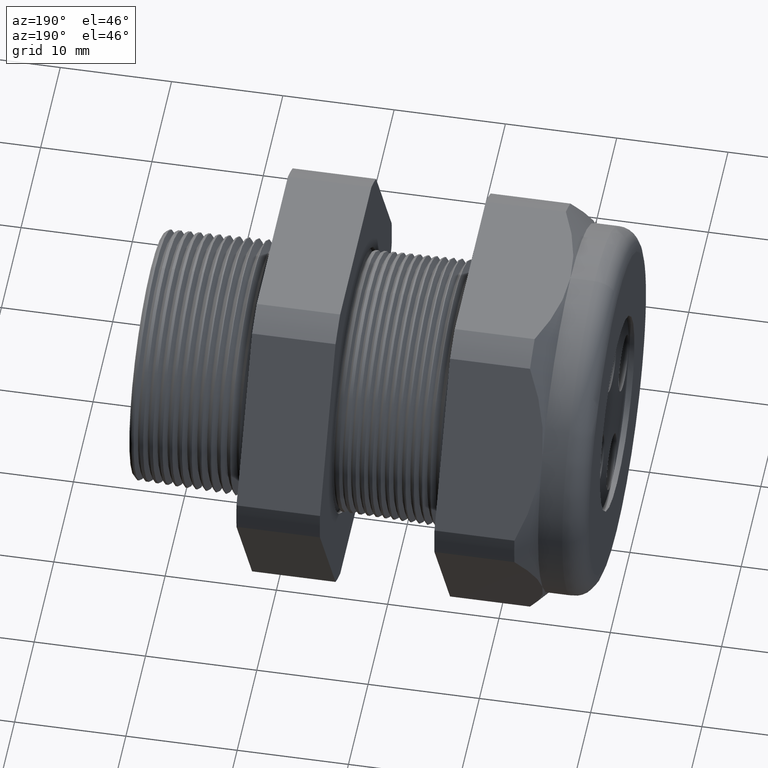
[diagram: clean part render]
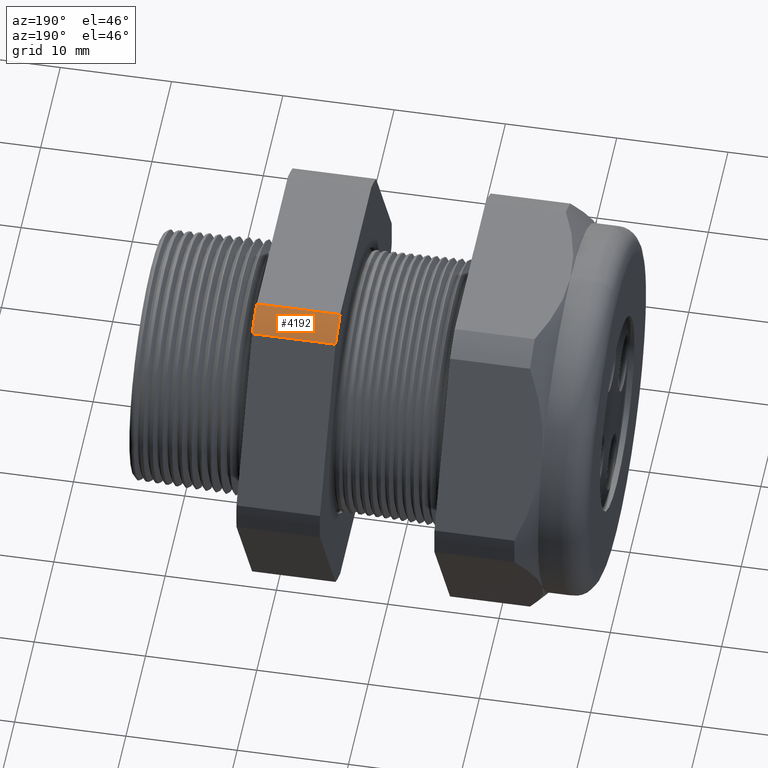
[diagram: same view with one face highlighted and labeled with its STEP entity id]
A machine part, auxiliary view. The second image highlights one B-rep face of the part: STEP entity #4192.
In plain terms, the highlighted cylindrical surface (partial cylindrical patch) has radius 18.3261 mm, axis along (-1, 0, 0).
Its self-contained STEP definition (entity closure, byte-faithful):
#3318 = CARTESIAN_POINT ( 'NONE',  ( -0.6052755905511810800, 0.4063420493440890700, 0.5961949252843787800 ) ) ;
#3519 = CYLINDRICAL_SURFACE ( 'NONE', #3521, 0.7215000000000000300 ) ;
#3520 = FACE_OUTER_BOUND ( 'NONE', #4178, .T. ) ;
#3521 = AXIS2_PLACEMENT_3D ( 'NONE', #3580, #3579, #3578 ) ;
#3559 = DIRECTION ( 'NONE',  ( -1.000000000000000000, 0.0000000000000000000, 0.0000000000000000000 ) ) ;
#3560 = VECTOR ( 'NONE', #3559, 39.37007874015748100 ) ;
#3561 = CARTESIAN_POINT ( 'NONE',  ( 0.1200000000000000900, 0.3131489262315937900, 0.6499999999999999100 ) ) ;
#3562 = LINE ( 'NONE', #3561, #3560 ) ;
#3578 = DIRECTION ( 'NONE',  ( 0.0000000000000000000, 0.0000000000000000000, 1.000000000000000000 ) ) ;
#3579 = DIRECTION ( 'NONE',  ( -1.000000000000000000, 0.0000000000000000000, 0.0000000000000000000 ) ) ;
#3580 = CARTESIAN_POINT ( 'NONE',  ( 0.1200000000000000900, 0.0000000000000000000, 0.0000000000000000000 ) ) ;
#3621 = DIRECTION ( 'NONE',  ( 0.0000000000000000000, 0.0000000000000000000, 1.000000000000000000 ) ) ;
#3622 = DIRECTION ( 'NONE',  ( -1.000000000000000000, 0.0000000000000000000, 0.0000000000000000000 ) ) ;
#3623 = AXIS2_PLACEMENT_3D ( 'NONE', #3629, #3622, #3621 ) ;
#3624 = CIRCLE ( 'NONE', #3623, 0.7215000000000000300 ) ;
#3629 = CARTESIAN_POINT ( 'NONE',  ( -0.6052755905511810800, 0.0000000000000000000, 0.0000000000000000000 ) ) ;
#3632 = CARTESIAN_POINT ( 'NONE',  ( -0.6052755905511810800, 0.3131489262315937900, 0.6499999999999999100 ) ) ;
#3676 = DIRECTION ( 'NONE',  ( -1.000000000000000000, 0.0000000000000000000, 0.0000000000000000000 ) ) ;
#3677 = VECTOR ( 'NONE', #3676, 39.37007874015748100 ) ;
#3678 = CARTESIAN_POINT ( 'NONE',  ( 0.1200000000000000900, 0.4063420493440890700, 0.5961949252843787800 ) ) ;
#3679 = LINE ( 'NONE', #3678, #3677 ) ;
#4045 = VERTEX_POINT ( 'NONE', #3318 ) ;
#4161 = ORIENTED_EDGE ( 'NONE', *, *, #4199, .F. ) ;
#4174 = ORIENTED_EDGE ( 'NONE', *, *, #4252, .T. ) ;
#4175 = ORIENTED_EDGE ( 'NONE', *, *, #4238, .F. ) ;
#4178 = EDGE_LOOP ( 'NONE', ( #4174, #4175, #4161, #4266 ) ) ;
#4192 = ADVANCED_FACE ( 'NONE', ( #3520 ), #3519, .T. ) ;
#4199 = EDGE_CURVE ( 'NONE', #5717, #4235, #3562, .T. ) ;
#4235 = VERTEX_POINT ( 'NONE', #3632 ) ;
#4238 = EDGE_CURVE ( 'NONE', #4235, #4045, #3624, .T. ) ;
#4252 = EDGE_CURVE ( 'NONE', #5753, #4045, #3679, .T. ) ;
#4266 = ORIENTED_EDGE ( 'NONE', *, *, #5712, .F. ) ;
#5051 = AXIS2_PLACEMENT_3D ( 'NONE', #5106, #5105, #5104 ) ;
#5052 = CIRCLE ( 'NONE', #5051, 0.7215000000000000300 ) ;
#5096 = CARTESIAN_POINT ( 'NONE',  ( -0.3100000000000000000, 0.3131489262315937900, 0.6499999999999999100 ) ) ;
#5104 = DIRECTION ( 'NONE',  ( 0.0000000000000000000, 0.0000000000000000000, -1.000000000000000000 ) ) ;
#5105 = DIRECTION ( 'NONE',  ( 1.000000000000000000, 0.0000000000000000000, 0.0000000000000000000 ) ) ;
#5106 = CARTESIAN_POINT ( 'NONE',  ( -0.3100000000000000000, 0.0000000000000000000, 0.0000000000000000000 ) ) ;
#5166 = CARTESIAN_POINT ( 'NONE',  ( -0.3100000000000000000, 0.4063420493440890700, 0.5961949252843787800 ) ) ;
#5712 = EDGE_CURVE ( 'NONE', #5753, #5717, #5052, .T. ) ;
#5717 = VERTEX_POINT ( 'NONE', #5096 ) ;
#5753 = VERTEX_POINT ( 'NONE', #5166 ) ;